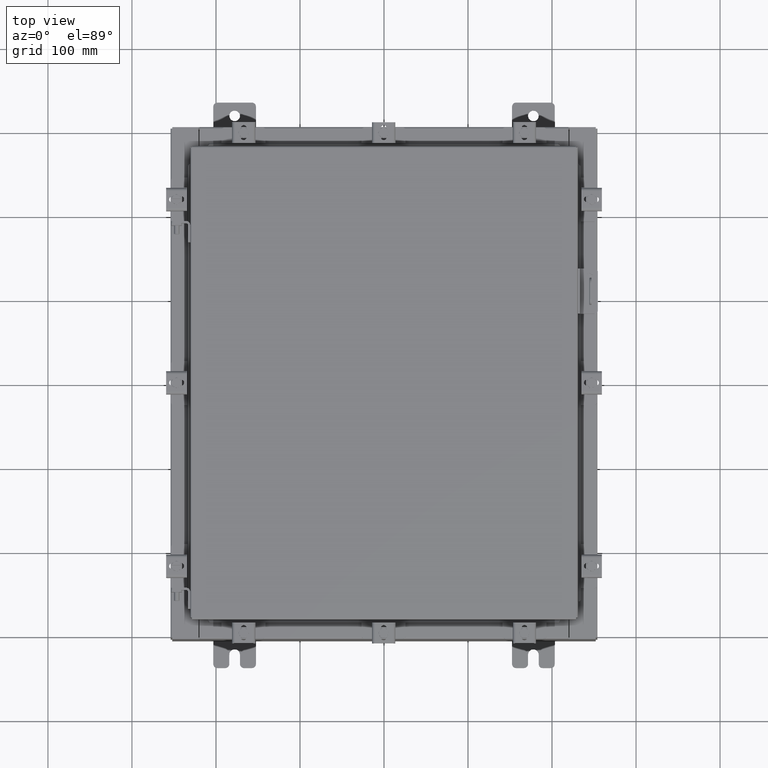
[diagram: clean part render]
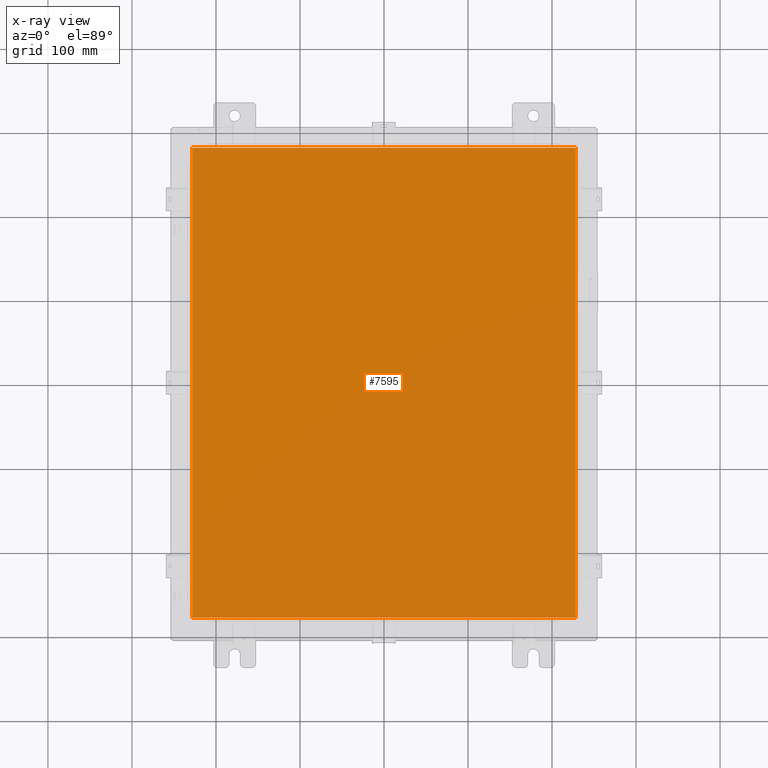
[diagram: x-ray — body ghosted, one internal face saturated and labeled with its STEP entity id]
A machine part, top view, then the same camera in x-ray: the body is ghosted and one INTERNAL B-rep face — a face not visible from any outside direction — is saturated and labeled: STEP entity #7595.
In plain terms, the highlighted planar face has unit normal (0, 0, -1).
Its self-contained STEP definition (entity closure, byte-faithful):
#1060 = ORIENTED_EDGE ( 'NONE', *, *, #21468, .F. ) ;
#1172 = EDGE_CURVE ( 'NONE', #20192, #6527, #17786, .T. ) ;
#1466 = PLANE ( 'NONE',  #12423 ) ;
#2031 = CARTESIAN_POINT ( 'NONE',  ( -8.990299999999999500, 11.00630000000000100, -0.07470000000000019700 ) ) ;
#2879 = DIRECTION ( 'NONE',  ( -1.000000000000000000, -0.0000000000000000000, -0.0000000000000000000 ) ) ;
#4179 = LINE ( 'NONE', #10279, #22110 ) ;
#6011 = CARTESIAN_POINT ( 'NONE',  ( -8.990299999999999500, 11.00630000000000000, -0.07470000000000000300 ) ) ;
#6209 = VERTEX_POINT ( 'NONE', #10339 ) ;
#6527 = VERTEX_POINT ( 'NONE', #6011 ) ;
#7595 = ADVANCED_FACE ( 'NONE', ( #8866 ), #1466, .T. ) ;
#8333 = CARTESIAN_POINT ( 'NONE',  ( -8.990299999999999500, -11.00630000000000100, -0.07470000000000019700 ) ) ;
#8639 = DIRECTION ( 'NONE',  ( 0.0000000000000000000, 0.0000000000000000000, -1.000000000000000000 ) ) ;
#8866 = FACE_OUTER_BOUND ( 'NONE', #19311, .T. ) ;
#10279 = CARTESIAN_POINT ( 'NONE',  ( 8.990299999999999500, -11.00630000000000000, -0.07470000000000073800 ) ) ;
#10339 = CARTESIAN_POINT ( 'NONE',  ( 8.990299999999999500, -11.00630000000000000, -0.07470000000000000300 ) ) ;
#10997 = EDGE_CURVE ( 'NONE', #6209, #20192, #4179, .T. ) ;
#11806 = CARTESIAN_POINT ( 'NONE',  ( 8.990299999999999500, 11.00630000000000000, -0.07470000000000019700 ) ) ;
#12189 = ORIENTED_EDGE ( 'NONE', *, *, #10997, .F. ) ;
#12419 = VECTOR ( 'NONE', #16915, 39.37007874015748100 ) ;
#12423 = AXIS2_PLACEMENT_3D ( 'NONE', #15473, #8639, #20758 ) ;
#12521 = VECTOR ( 'NONE', #15929, 39.37007874015748100 ) ;
#12590 = CARTESIAN_POINT ( 'NONE',  ( -8.990299999999997700, -11.00630000000000100, -0.07470000000000000300 ) ) ;
#12652 = LINE ( 'NONE', #8333, #12419 ) ;
#13119 = VECTOR ( 'NONE', #2879, 39.37007874015748100 ) ;
#14127 = ORIENTED_EDGE ( 'NONE', *, *, #16769, .F. ) ;
#15473 = CARTESIAN_POINT ( 'NONE',  ( 0.0000000000000000000, 0.0000000000000000000, -0.07470000000000000300 ) ) ;
#15929 = DIRECTION ( 'NONE',  ( 0.0000000000000000000, -1.000000000000000000, 0.0000000000000000000 ) ) ;
#16769 = EDGE_CURVE ( 'NONE', #22058, #6209, #12652, .T. ) ;
#16915 = DIRECTION ( 'NONE',  ( 1.000000000000000000, -0.0000000000000000000, -0.0000000000000000000 ) ) ;
#17167 = LINE ( 'NONE', #2031, #12521 ) ;
#17590 = ORIENTED_EDGE ( 'NONE', *, *, #1172, .F. ) ;
#17786 = LINE ( 'NONE', #11806, #13119 ) ;
#18824 = CARTESIAN_POINT ( 'NONE',  ( 8.990299999999997700, 11.00630000000000000, -0.07470000000000000300 ) ) ;
#19311 = EDGE_LOOP ( 'NONE', ( #12189, #14127, #1060, #17590 ) ) ;
#20192 = VERTEX_POINT ( 'NONE', #18824 ) ;
#20758 = DIRECTION ( 'NONE',  ( -1.000000000000000000, 0.0000000000000000000, -0.0000000000000000000 ) ) ;
#21468 = EDGE_CURVE ( 'NONE', #6527, #22058, #17167, .T. ) ;
#22058 = VERTEX_POINT ( 'NONE', #12590 ) ;
#22110 = VECTOR ( 'NONE', #22410, 39.37007874015748100 ) ;
#22410 = DIRECTION ( 'NONE',  ( 0.0000000000000000000, 1.000000000000000000, 0.0000000000000000000 ) ) ;